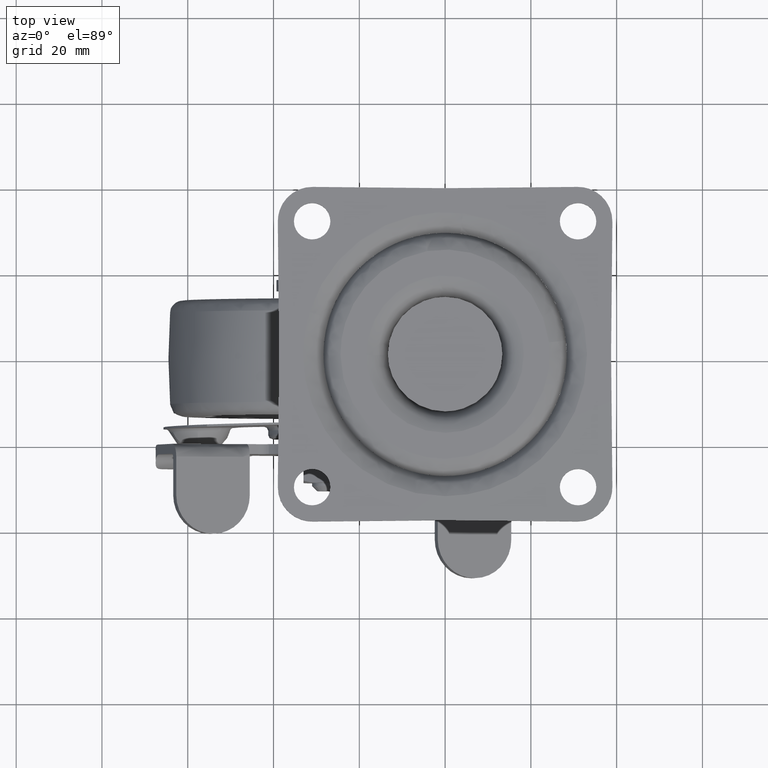
[diagram: clean part render]
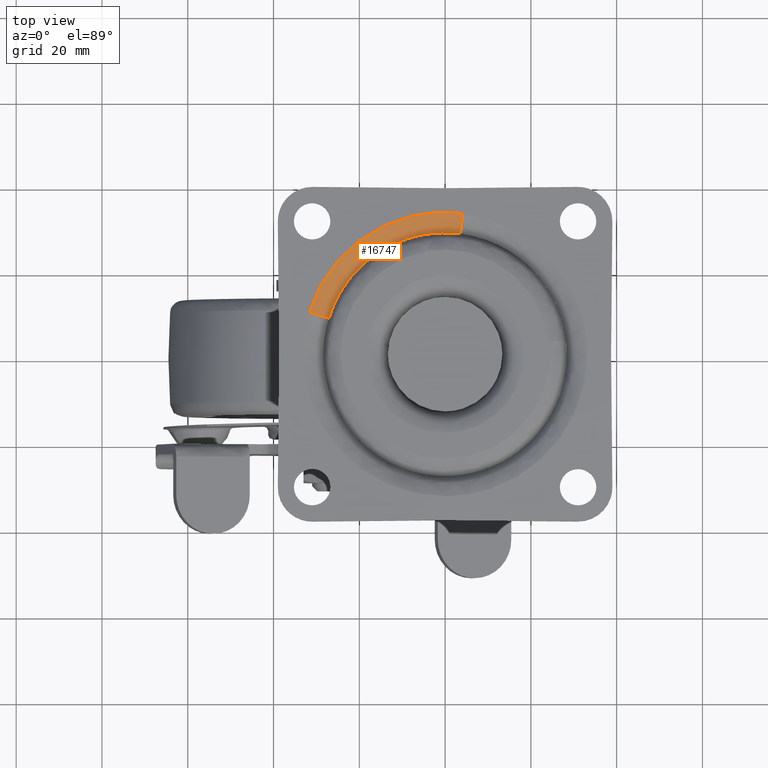
[diagram: same view with one face highlighted and labeled with its STEP entity id]
A machine part, top view. The second image highlights one B-rep face of the part: STEP entity #16747.
In plain terms, the highlighted face is a freeform B-spline surface patch.
Its self-contained STEP definition (entity closure, byte-faithful):
#16540=CARTESIAN_POINT('',(3.567545765108236,28.125688835907869,-3.457000997507505));
#16541=VERTEX_POINT('',#16540);
#16593=CARTESIAN_POINT('',(-27.071006708987920,8.421425879810045,-3.457000996946494));
#16594=VERTEX_POINT('',#16593);
#16602=CARTESIAN_POINT('',(-31.612304143188101,9.834143714640199,-8.655556E-016));
#16603=VERTEX_POINT('',#16602);
#16604=CARTESIAN_POINT('',(-27.071006708987920,8.421425879810045,-3.457000996946494));
#16605=CARTESIAN_POINT('',(-27.177072439294740,8.454421064762105,-3.114466499470127));
#16606=CARTESIAN_POINT('',(-27.485992016868639,8.550520517153277,-2.393437779760646));
#16607=CARTESIAN_POINT('',(-28.179257026264970,8.766183079903881,-1.452957313072125));
#16608=CARTESIAN_POINT('',(-29.167824902602611,9.073709175706208,-0.636262861596057));
#16609=CARTESIAN_POINT('',(-30.330688453224901,9.435455593197631,-0.117630297889402));
#16610=CARTESIAN_POINT('',(-31.205943501547718,9.707732059323567,0.000088960438336));
#16611=CARTESIAN_POINT('',(-31.612304143188101,9.834143714640199,-8.655556E-016));
#16612=B_SPLINE_CURVE_WITH_KNOTS('',3,(#16604,#16605,#16606,#16607,#16608,#16609,#16610,#16611),.UNSPECIFIED.,.F.,.U.,(4,1,1,1,1,4),(0.000000146810806,1.080299989547033,2.357080478487890,3.535547772483078,5.008752517128957,6.285479489673755),.UNSPECIFIED.);
#16613=EDGE_CURVE('',#16594,#16603,#16612,.T.);
#16662=CARTESIAN_POINT('',(4.165951707266321,32.843852246699882,-6.260694E-015));
#16663=VERTEX_POINT('',#16662);
#16680=CARTESIAN_POINT('',(3.567545765108236,28.125688835907869,-3.457000997507505));
#16681=CARTESIAN_POINT('',(3.581522341725171,28.235887925990632,-3.114468423373693));
#16682=CARTESIAN_POINT('',(3.622227973341597,28.556833694476360,-2.393429572585363));
#16683=CARTESIAN_POINT('',(3.713578644716367,29.277092958508600,-1.452944021242930));
#16684=CARTESIAN_POINT('',(3.830823036544774,30.201512595103448,-0.718065425619780));
#16685=CARTESIAN_POINT('',(3.980624729722059,31.382631960985130,-0.154736551622990));
#16686=CARTESIAN_POINT('',(4.095921808586843,32.291697840121863,0.000392986506778));
#16687=CARTESIAN_POINT('',(4.165951707266321,32.843852246699882,-6.260694E-015));
#16688=B_SPLINE_CURVE_WITH_KNOTS('',3,(#16680,#16681,#16682,#16683,#16684,#16685,#16686,#16687),.UNSPECIFIED.,.F.,.U.,(4,1,1,1,1,4),(0.000000146814029,1.080300022181867,2.357080549695926,3.535547879283300,4.615897478523978,6.285479679547894),.UNSPECIFIED.);
#16689=EDGE_CURVE('',#16541,#16663,#16688,.T.);
#16694=CARTESIAN_POINT('',(-26.993041506806904,8.397172275121143,-3.736067340356080));
#16695=CARTESIAN_POINT('',(-19.953437823045753,31.026556117625777,-3.736067340356079));
#16696=CARTESIAN_POINT('',(3.557272307300985,28.044687193168407,-3.736067340356079));
#16697=CARTESIAN_POINT('',(-27.982456646860260,8.704961939796249,0.229850708095491));
#16698=CARTESIAN_POINT('',(-20.684823571027469,32.163802441815257,0.229850708095490));
#16699=CARTESIAN_POINT('',(3.687647322371931,29.072636196034253,0.229850708095491));
#16700=CARTESIAN_POINT('',(-31.889870657966380,9.920489779970882,-0.008457033393571));
#16701=CARTESIAN_POINT('',(-23.573223802130556,36.655033717068655,-0.008457033393572));
#16702=CARTESIAN_POINT('',(4.202526405947413,33.132228751171326,-0.008457033393571));
#16710=(BOUNDED_SURFACE()B_SPLINE_SURFACE(2,2,((#16694,#16697,#16700),(#16695,#16698,#16701),(#16696,#16699,#16702)),.UNSPECIFIED.,.F.,.F.,.U.)B_SPLINE_SURFACE_WITH_KNOTS((3,3),(3,3),(0.0,48.574817488917184),(0.0,7.150251784454182),.UNSPECIFIED.)GEOMETRIC_REPRESENTATION_ITEM()RATIONAL_B_SPLINE_SURFACE(((0.916003810450130,0.708328038936076,0.915863049693749),(0.679907462500579,0.525759297152245,0.679802982270695),(0.859340686942238,0.664511540907957,0.859208633512216)))REPRESENTATION_ITEM('')SURFACE());
#16711=CARTESIAN_POINT('',(3.567545765108236,28.125688835907869,-3.457000997507505));
#16712=CARTESIAN_POINT('',(1.983430024851500,28.326743332534519,-3.457000997809131));
#16713=CARTESIAN_POINT('',(-0.547380085306012,28.432032521593470,-3.457000998232475));
#16714=CARTESIAN_POINT('',(-4.399001600734296,28.077206733813149,-3.457000998737192));
#16715=CARTESIAN_POINT('',(-7.579609546504511,27.393359429305239,-3.457000999048016));
#16716=CARTESIAN_POINT('',(-10.843992701704090,26.259045652841650,-3.457000999249840));
#16717=CARTESIAN_POINT('',(-13.683615274143669,24.900769814309069,-3.457000999324640));
#16718=CARTESIAN_POINT('',(-16.916754424303569,22.871081480654240,-3.457000999278908));
#16719=CARTESIAN_POINT('',(-19.955853288383629,20.299113587919312,-3.457000999055943));
#16720=CARTESIAN_POINT('',(-23.097116329280599,16.667525784794009,-3.457000998561635));
#16721=CARTESIAN_POINT('',(-25.465672121377398,12.777120310779420,-3.457000997876647));
#16722=CARTESIAN_POINT('',(-26.657917168252641,9.749418131891625,-3.457000997241994));
#16723=CARTESIAN_POINT('',(-27.071006708987920,8.421425879810045,-3.457000996946494));
#16724=B_SPLINE_CURVE_WITH_KNOTS('',3,(#16711,#16712,#16713,#16714,#16715,#16716,#16717,#16718,#16719,#16720,#16721,#16722,#16723),.UNSPECIFIED.,.F.,.U.,(4,1,1,1,1,1,1,1,1,1,4),(0.000000081637438,4.790446175022026,7.571997693225605,11.589817002421430,14.525907156001111,17.925633002542469,21.016154537145582,25.961181659388849,29.824458356878999,35.387599932326317,39.559903102051869),.UNSPECIFIED.);
#16725=EDGE_CURVE('',#16541,#16594,#16724,.T.);
#16726=ORIENTED_EDGE('',*,*,#16725,.F.);
#16727=ORIENTED_EDGE('',*,*,#16689,.T.);
#16728=CARTESIAN_POINT('',(-31.612304143188101,9.834143714640199,-8.655556E-016));
#16729=CARTESIAN_POINT('',(-31.219250942375389,11.097735977504749,-6.202879E-016));
#16730=CARTESIAN_POINT('',(-30.174787911686579,13.859542499972090,-1.480831E-016));
#16731=CARTESIAN_POINT('',(-27.825173320652269,18.211561173785899,3.535273E-016));
#16732=CARTESIAN_POINT('',(-24.757229853460771,22.175872926583349,4.908267E-016));
#16733=CARTESIAN_POINT('',(-21.479325019468579,25.288425713841001,2.991652E-016));
#16734=CARTESIAN_POINT('',(-18.399192123185831,27.606285722210039,-6.377869E-017));
#16735=CARTESIAN_POINT('',(-15.337728949274499,29.413903930392070,-5.740156E-016));
#16736=CARTESIAN_POINT('',(-11.496037808622720,31.149751278117449,-1.374706E-015));
#16737=CARTESIAN_POINT('',(-7.220974421886553,32.441959787920233,-2.458375E-015));
#16738=CARTESIAN_POINT('',(-1.728129148898483,33.221208760769592,-4.116180E-015));
#16739=CARTESIAN_POINT('',(2.017742556681319,33.116590076852752,-5.438351E-015));
#16740=CARTESIAN_POINT('',(4.165951707266321,32.843852246699882,-6.260694E-015));
#16741=B_SPLINE_CURVE_WITH_KNOTS('',3,(#16728,#16729,#16730,#16731,#16732,#16733,#16734,#16735,#16736,#16737,#16738,#16739,#16740),.UNSPECIFIED.,.F.,.U.,(4,1,1,1,1,1,1,1,1,1,4),(0.000000081314624,3.969944353350286,8.842223324680489,14.797221125396209,18.947673915258051,22.376330296200891,26.346226877457340,29.594404620758951,35.008049924047967,39.699877587986776,46.196188113897847),.UNSPECIFIED.);
#16742=EDGE_CURVE('',#16603,#16663,#16741,.T.);
#16743=ORIENTED_EDGE('',*,*,#16742,.F.);
#16744=ORIENTED_EDGE('',*,*,#16613,.F.);
#16745=EDGE_LOOP('',(#16726,#16727,#16743,#16744));
#16746=FACE_OUTER_BOUND('',#16745,.T.);
#16747=ADVANCED_FACE('',(#16746),#16710,.T.);